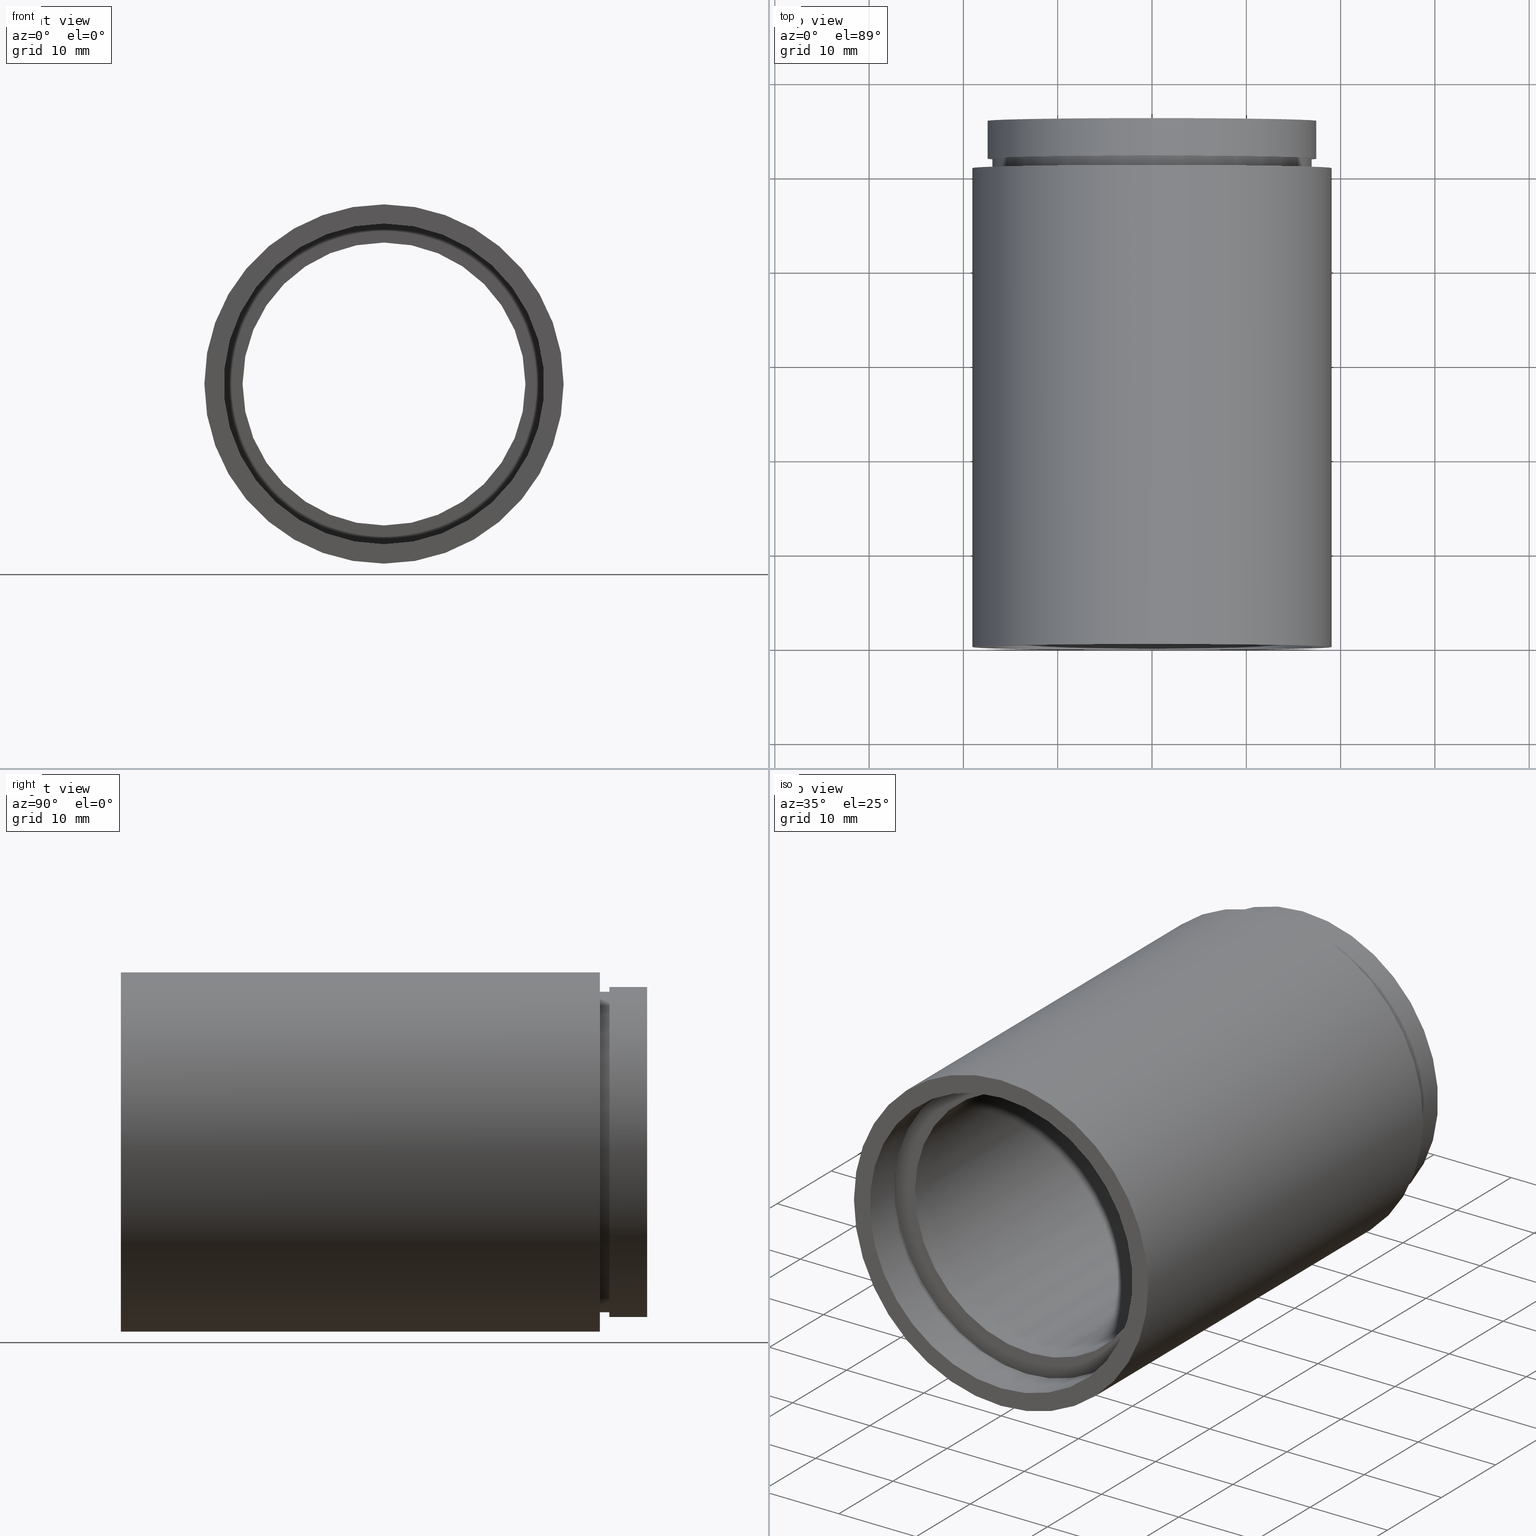
[diagram: canonical four-view strip — front | top / right | iso, engineering-drawing reading convention]
A machine part, canonical four-view strip (front | top / right | iso — engineering-drawing reading convention). The complete STEP part file that produces these views, byte-faithful:
ISO-10303-21;
HEADER;
FILE_DESCRIPTION (( 'STEP AP214' ),
    '1' );
FILE_NAME ('503034.STEP',
    '2019-09-05T08:46:19',
    ( '' ),
    ( '' ),
    'SwSTEP 2.0',
    'SolidWorks 2016',
    '' );
FILE_SCHEMA (( 'AUTOMOTIVE_DESIGN' ));
ENDSEC;

DATA;
#1 = FILL_AREA_STYLE_COLOUR ( '', #294 ) ;
#2 = CARTESIAN_POINT ( 'NONE',  ( 0.0000000000000000000, 51.79999999999998300, 17.50000000000002100 ) ) ;
#3 = EDGE_CURVE ( 'NONE', #215, #433, #228, .T. ) ;
#4 = SURFACE_STYLE_USAGE ( .BOTH. , #345 ) ;
#5 = EDGE_LOOP ( 'NONE', ( #218, #125, #75, #61 ) ) ;
#6 = EDGE_LOOP ( 'NONE', ( #570, #299 ) ) ;
#7 = ADVANCED_FACE ( 'NONE', ( #613 ), #170, .F. ) ;
#8 = COLOUR_RGB ( '',1.000000000000000000, 1.000000000000000000, 1.000000000000000000 ) ;
#9 =( GEOMETRIC_REPRESENTATION_CONTEXT ( 3 ) GLOBAL_UNCERTAINTY_ASSIGNED_CONTEXT ( ( #71 ) ) GLOBAL_UNIT_ASSIGNED_CONTEXT ( ( #407, #163, #448 ) ) REPRESENTATION_CONTEXT ( 'NONE', 'WORKASPACE' ) );
#10 = PLANE ( 'NONE',  #22 ) ;
#11 = DIRECTION ( 'NONE',  ( 1.000000000000000000, 0.0000000000000000000, 0.0000000000000000000 ) ) ;
#12 = UNCERTAINTY_MEASURE_WITH_UNIT (LENGTH_MEASURE( 1.000000000000000100E-005 ), #623, 'distance_accuracy_value', 'NONE');
#13 = SURFACE_SIDE_STYLE ('',( #459 ) ) ;
#14 = EDGE_CURVE ( 'NONE', #40, #473, #600, .T. ) ;
#15 = DIRECTION ( 'NONE',  ( 0.0000000000000000000, 0.0000000000000000000, 1.000000000000000000 ) ) ;
#16 = DIRECTION ( 'NONE',  ( 0.0000000000000000000, 0.0000000000000000000, 1.000000000000000000 ) ) ;
#17 = DIRECTION ( 'NONE',  ( 0.0000000000000000000, 0.0000000000000000000, 1.000000000000000000 ) ) ;
#18 = STYLED_ITEM ( 'NONE', ( #63 ), #615 ) ;
#19 = CARTESIAN_POINT ( 'NONE',  ( 0.0000000000000000000, 50.79999999999998300, 17.00000000000001400 ) ) ;
#20 = ORIENTED_EDGE ( 'NONE', *, *, #82, .F. ) ;
#21 = ORIENTED_EDGE ( 'NONE', *, *, #36, .T. ) ;
#22 = AXIS2_PLACEMENT_3D ( 'NONE', #296, #186, #49 ) ;
#23 = PRODUCT ( '503034', '503034', '', ( #203 ) ) ;
#24 = EDGE_CURVE ( 'NONE', #219, #433, #35, .T. ) ;
#25 = CARTESIAN_POINT ( 'NONE',  ( 0.0000000000000000000, 4.499999999999976000, 17.00000000000002500 ) ) ;
#26 = AXIS2_PLACEMENT_3D ( 'NONE', #624, #88, #244 ) ;
#27 = ORIENTED_EDGE ( 'NONE', *, *, #330, .F. ) ;
#28 = DIRECTION ( 'NONE',  ( 0.0000000000000000000, 0.0000000000000000000, 1.000000000000000000 ) ) ;
#29 = VERTEX_POINT ( 'NONE', #387 ) ;
#30 = DIRECTION ( 'NONE',  ( -0.0000000000000000000, 1.000000000000000000, -0.0000000000000000000 ) ) ;
#31 = CYLINDRICAL_SURFACE ( 'NONE', #461, 15.00000000000001600 ) ;
#32 = EDGE_CURVE ( 'NONE', #141, #462, #463, .T. ) ;
#33 = DIRECTION ( 'NONE',  ( 0.0000000000000000000, -1.000000000000000000, 0.0000000000000000000 ) ) ;
#34 = VERTEX_POINT ( 'NONE', #231 ) ;
#35 = LINE ( 'NONE', #336, #547 ) ;
#36 = EDGE_CURVE ( 'NONE', #473, #431, #343, .T. ) ;
#37 = AXIS2_PLACEMENT_3D ( 'NONE', #605, #74, #375 ) ;
#38 = CYLINDRICAL_SURFACE ( 'NONE', #260, 19.05000000000002200 ) ;
#39 = CIRCLE ( 'NONE', #413, 19.05000000000002200 ) ;
#40 = VERTEX_POINT ( 'NONE', #2 ) ;
#41 = VERTEX_POINT ( 'NONE', #339 ) ;
#42 = EDGE_CURVE ( 'NONE', #462, #335, #537, .T. ) ;
#43 = DIRECTION ( 'NONE',  ( -0.0000000000000000000, 1.000000000000000000, -0.0000000000000000000 ) ) ;
#44 = DIRECTION ( 'NONE',  ( -0.0000000000000000000, 1.000000000000000000, -0.0000000000000000000 ) ) ;
#45 = EDGE_LOOP ( 'NONE', ( #598, #133 ) ) ;
#46 = DIRECTION ( 'NONE',  ( -0.0000000000000000000, 1.000000000000000000, -0.0000000000000000000 ) ) ;
#47 = PLANE ( 'NONE',  #26 ) ;
#48 = STYLED_ITEM ( 'NONE', ( #322 ), #253 ) ;
#49 = DIRECTION ( 'NONE',  ( 0.0000000000000000000, -0.0000000000000000000, -1.000000000000000000 ) ) ;
#50 = FACE_OUTER_BOUND ( 'NONE', #179, .T. ) ;
#51 = EDGE_CURVE ( 'NONE', #40, #554, #65, .T. ) ;
#52 = DIRECTION ( 'NONE',  ( -0.0000000000000000000, 1.000000000000000000, -0.0000000000000000000 ) ) ;
#53 = MECHANICAL_DESIGN_GEOMETRIC_PRESENTATION_REPRESENTATION (  '', ( #189 ), #211 ) ;
#54 = APPLICATION_PROTOCOL_DEFINITION ( 'draft international standard', 'automotive_design', 1998, #308 ) ;
#55 = DIRECTION ( 'NONE',  ( -0.0000000000000000000, 1.000000000000000000, -0.0000000000000000000 ) ) ;
#56 = DIRECTION ( 'NONE',  ( 0.0000000000000000000, 0.0000000000000000000, 1.000000000000000000 ) ) ;
#57 = ADVANCED_FACE ( 'NONE', ( #81, #226 ), #10, .F. ) ;
#58 = DIRECTION ( 'NONE',  ( -0.0000000000000000000, 1.000000000000000000, -0.0000000000000000000 ) ) ;
#59 = ORIENTED_EDGE ( 'NONE', *, *, #502, .T. ) ;
#60 = ORIENTED_EDGE ( 'NONE', *, *, #379, .F. ) ;
#61 = ORIENTED_EDGE ( 'NONE', *, *, #591, .F. ) ;
#62 = DIRECTION ( 'NONE',  ( -0.0000000000000000000, 1.000000000000000000, -0.0000000000000000000 ) ) ;
#63 = PRESENTATION_STYLE_ASSIGNMENT (( #158 ) ) ;
#64 = FILL_AREA_STYLE ('',( #500 ) ) ;
#65 = LINE ( 'NONE', #142, #410 ) ;
#66 = VERTEX_POINT ( 'NONE', #426 ) ;
#67 = AXIS2_PLACEMENT_3D ( 'NONE', #258, #206, #599 ) ;
#68 = VERTEX_POINT ( 'NONE', #97 ) ;
#69 = SURFACE_STYLE_USAGE ( .BOTH. , #115 ) ;
#70 = CARTESIAN_POINT ( 'NONE',  ( 0.0000000000000000000, 161.3761669434274500, 0.0000000000000000000 ) ) ;
#71 = UNCERTAINTY_MEASURE_WITH_UNIT (LENGTH_MEASURE( 1.000000000000000100E-005 ), #407, 'distance_accuracy_value', 'NONE');
#72 = EDGE_CURVE ( 'NONE', #34, #191, #39, .T. ) ;
#73 = CARTESIAN_POINT ( 'NONE',  ( 1.836970198721032000E-015, 5.499999999999976900, -15.00000000000001600 ) ) ;
#74 = DIRECTION ( 'NONE',  ( -0.0000000000000000000, 1.000000000000000000, -0.0000000000000000000 ) ) ;
#75 = ORIENTED_EDGE ( 'NONE', *, *, #51, .T. ) ;
#76 = AXIS2_PLACEMENT_3D ( 'NONE', #573, #340, #287 ) ;
#77 = DIRECTION ( 'NONE',  ( -0.0000000000000000000, 1.000000000000000000, -0.0000000000000000000 ) ) ;
#78 = PRESENTATION_LAYER_ASSIGNMENT (  '', '', ( #48 ) ) ;
#79 = FACE_OUTER_BOUND ( 'NONE', #167, .T. ) ;
#80 = ORIENTED_EDGE ( 'NONE', *, *, #148, .T. ) ;
#81 = FACE_BOUND ( 'NONE', #496, .T. ) ;
#82 = EDGE_CURVE ( 'NONE', #433, #215, #152, .T. ) ;
#83 = AXIS2_PLACEMENT_3D ( 'NONE', #530, #392, #477 ) ;
#84 = FACE_OUTER_BOUND ( 'NONE', #86, .T. ) ;
#85 = LINE ( 'NONE', #549, #334 ) ;
#86 = EDGE_LOOP ( 'NONE', ( #127, #80 ) ) ;
#87 = EDGE_LOOP ( 'NONE', ( #562, #282 ) ) ;
#88 = DIRECTION ( 'NONE',  ( -0.0000000000000000000, 1.000000000000000000, 0.0000000000000000000 ) ) ;
#89 = AXIS2_PLACEMENT_3D ( 'NONE', #395, #436, #480 ) ;
#90 = CARTESIAN_POINT ( 'NONE',  ( 0.0000000000000000000, 5.499999999999976900, 0.0000000000000000000 ) ) ;
#91 = CARTESIAN_POINT ( 'NONE',  ( 0.0000000000000000000, 5.499999999999976900, 0.0000000000000000000 ) ) ;
#92 = EDGE_CURVE ( 'NONE', #155, #435, #280, .T. ) ;
#93 = DIRECTION ( 'NONE',  ( -0.0000000000000000000, 1.000000000000000000, -0.0000000000000000000 ) ) ;
#94 = CIRCLE ( 'NONE', #320, 19.05000000000002200 ) ;
#95 = AXIS2_PLACEMENT_3D ( 'NONE', #220, #30, #223 ) ;
#96 = CIRCLE ( 'NONE', #256, 17.60000000000002300 ) ;
#97 = CARTESIAN_POINT ( 'NONE',  ( 2.155378366499344400E-015, 4.499999999999976000, -17.60000000000002300 ) ) ;
#98 = ADVANCED_FACE ( 'NONE', ( #454 ), #224, .F. ) ;
#99 = UNCERTAINTY_MEASURE_WITH_UNIT (LENGTH_MEASURE( 1.000000000000000100E-005 ), #105, 'distance_accuracy_value', 'NONE');
#100 = DIRECTION ( 'NONE',  ( 0.0000000000000000000, 0.0000000000000000000, 1.000000000000000000 ) ) ;
#101 = DIRECTION ( 'NONE',  ( -0.0000000000000000000, 1.000000000000000000, -0.0000000000000000000 ) ) ;
#102 = CARTESIAN_POINT ( 'NONE',  ( 0.0000000000000000000, 161.3761669434274500, 0.0000000000000000000 ) ) ;
#103 = ADVANCED_FACE ( 'NONE', ( #238 ), #356, .F. ) ;
#104 = DIRECTION ( 'NONE',  ( 0.0000000000000000000, 0.0000000000000000000, 1.000000000000000000 ) ) ;
#105 =( LENGTH_UNIT ( ) NAMED_UNIT ( * ) SI_UNIT ( .MILLI., .METRE. ) );
#106 = DIRECTION ( 'NONE',  ( -0.0000000000000000000, 1.000000000000000000, -0.0000000000000000000 ) ) ;
#107 = SURFACE_STYLE_USAGE ( .BOTH. , #13 ) ;
#108 = CIRCLE ( 'NONE', #37, 17.00000000000001400 ) ;
#109 = EDGE_CURVE ( 'NONE', #68, #567, #389, .T. ) ;
#110 = FILL_AREA_STYLE_COLOUR ( '', #8 ) ;
#111 = DIRECTION ( 'NONE',  ( -0.0000000000000000000, 1.000000000000000000, -0.0000000000000000000 ) ) ;
#112 = FILL_AREA_STYLE_COLOUR ( '', #217 ) ;
#113 = DIRECTION ( 'NONE',  ( 0.0000000000000000000, 0.0000000000000000000, 1.000000000000000000 ) ) ;
#114 = ADVANCED_BREP_SHAPE_REPRESENTATION ( '503034', ( #615, #469 ), #512 ) ;
#115 = SURFACE_SIDE_STYLE ('',( #382 ) ) ;
#116 = FACE_BOUND ( 'NONE', #174, .T. ) ;
#117 = AXIS2_PLACEMENT_3D ( 'NONE', #587, #106, #15 ) ;
#118 = EDGE_LOOP ( 'NONE', ( #250, #526, #323, #290 ) ) ;
#119 = ORIENTED_EDGE ( 'NONE', *, *, #604, .T. ) ;
#120 = FILL_AREA_STYLE_COLOUR ( '', #442 ) ;
#121 = EDGE_CURVE ( 'NONE', #132, #219, #365, .T. ) ;
#122 = SURFACE_SIDE_STYLE ('',( #354 ) ) ;
#123 = UNCERTAINTY_MEASURE_WITH_UNIT (LENGTH_MEASURE( 1.000000000000000100E-005 ), #545, 'distance_accuracy_value', 'NONE');
#124 = DIRECTION ( 'NONE',  ( -0.0000000000000000000, 1.000000000000000000, -0.0000000000000000000 ) ) ;
#125 = ORIENTED_EDGE ( 'NONE', *, *, #162, .T. ) ;
#126 = AXIS2_PLACEMENT_3D ( 'NONE', #102, #192, #478 ) ;
#127 = ORIENTED_EDGE ( 'NONE', *, *, #72, .T. ) ;
#128 = DIRECTION ( 'NONE',  ( 0.0000000000000000000, 0.0000000000000000000, 1.000000000000000000 ) ) ;
#129 = AXIS2_PLACEMENT_3D ( 'NONE', #535, #490, #56 ) ;
#130 = FACE_OUTER_BOUND ( 'NONE', #546, .T. ) ;
#131 = EDGE_LOOP ( 'NONE', ( #588, #418, #444, #366 ) ) ;
#132 = VERTEX_POINT ( 'NONE', #350 ) ;
#133 = ORIENTED_EDGE ( 'NONE', *, *, #550, .T. ) ;
#134 = EDGE_CURVE ( 'NONE', #141, #41, #577, .T. ) ;
#135 = COLOUR_RGB ( '',1.000000000000000000, 1.000000000000000000, 1.000000000000000000 ) ;
#136 = ORIENTED_EDGE ( 'NONE', *, *, #502, .F. ) ;
#137 = CARTESIAN_POINT ( 'NONE',  ( 0.0000000000000000000, 161.3761669434274500, 0.0000000000000000000 ) ) ;
#138 = ORIENTED_EDGE ( 'NONE', *, *, #121, .T. ) ;
#139 = EDGE_CURVE ( 'NONE', #324, #510, #621, .T. ) ;
#140 = DIRECTION ( 'NONE',  ( -0.0000000000000000000, 1.000000000000000000, 0.0000000000000000000 ) ) ;
#141 = VERTEX_POINT ( 'NONE', #190 ) ;
#142 = CARTESIAN_POINT ( 'NONE',  ( 0.0000000000000000000, 161.3761669434274500, 17.50000000000002100 ) ) ;
#143 = DIRECTION ( 'NONE',  ( 0.0000000000000000000, 0.0000000000000000000, 1.000000000000000000 ) ) ;
#144 = CARTESIAN_POINT ( 'NONE',  ( 2.143131898507870600E-015, 161.3761669434274500, -17.50000000000002100 ) ) ;
#145 = PLANE ( 'NONE',  #76 ) ;
#146 = LINE ( 'NONE', #446, #329 ) ;
#147 = ADVANCED_FACE ( 'NONE', ( #505 ), #272, .F. ) ;
#148 = EDGE_CURVE ( 'NONE', #191, #34, #523, .T. ) ;
#149 = FACE_OUTER_BOUND ( 'NONE', #6, .T. ) ;
#150 = AXIS2_PLACEMENT_3D ( 'NONE', #328, #460, #271 ) ;
#151 = DIRECTION ( 'NONE',  ( -0.0000000000000000000, 1.000000000000000000, -0.0000000000000000000 ) ) ;
#152 = CIRCLE ( 'NONE', #89, 17.00000000000002500 ) ;
#153 = ORIENTED_EDGE ( 'NONE', *, *, #476, .F. ) ;
#154 = ORIENTED_EDGE ( 'NONE', *, *, #92, .T. ) ;
#155 = VERTEX_POINT ( 'NONE', #543 ) ;
#156 = FILL_AREA_STYLE_COLOUR ( '', #515 ) ;
#157 = CARTESIAN_POINT ( 'NONE',  ( 0.0000000000000000000, -2.775557561562891400E-014, 0.0000000000000000000 ) ) ;
#158 = SURFACE_STYLE_USAGE ( .BOTH. , #584 ) ;
#159 = EDGE_LOOP ( 'NONE', ( #540, #423, #445, #182 ) ) ;
#160 = ORIENTED_EDGE ( 'NONE', *, *, #139, .T. ) ;
#161 = DIRECTION ( 'NONE',  ( -0.0000000000000000000, 1.000000000000000000, -0.0000000000000000000 ) ) ;
#162 = EDGE_CURVE ( 'NONE', #473, #40, #342, .T. ) ;
#163 =( NAMED_UNIT ( * ) PLANE_ANGLE_UNIT ( ) SI_UNIT ( $, .RADIAN. ) );
#164 = PRESENTATION_STYLE_ASSIGNMENT (( #4 ) ) ;
#165 = UNCERTAINTY_MEASURE_WITH_UNIT (LENGTH_MEASURE( 1.000000000000000100E-005 ), #456, 'distance_accuracy_value', 'NONE');
#166 = FACE_BOUND ( 'NONE', #412, .T. ) ;
#167 = EDGE_LOOP ( 'NONE', ( #555, #409 ) ) ;
#168 = AXIS2_PLACEMENT_3D ( 'NONE', #196, #352, #104 ) ;
#169 = CARTESIAN_POINT ( 'NONE',  ( 0.0000000000000000000, 4.499999999999976000, 0.0000000000000000000 ) ) ;
#170 = CYLINDRICAL_SURFACE ( 'NONE', #508, 17.00000000000002100 ) ;
#171 = AXIS2_PLACEMENT_3D ( 'NONE', #275, #465, #286 ) ;
#172 = CARTESIAN_POINT ( 'NONE',  ( 2.143131898507870600E-015, 55.79999999999999000, -17.50000000000002100 ) ) ;
#173 = AXIS2_PLACEMENT_3D ( 'NONE', #91, #52, #575 ) ;
#174 = EDGE_LOOP ( 'NONE', ( #138, #536 ) ) ;
#175 = FACE_OUTER_BOUND ( 'NONE', #514, .T. ) ;
#176 = CIRCLE ( 'NONE', #385, 17.60000000000002300 ) ;
#177 = CIRCLE ( 'NONE', #67, 17.00000000000002100 ) ;
#178 = EDGE_CURVE ( 'NONE', #567, #68, #96, .T. ) ;
#179 = EDGE_LOOP ( 'NONE', ( #284, #230, #452, #355 ) ) ;
#180 = AXIS2_PLACEMENT_3D ( 'NONE', #414, #369, #212 ) ;
#181 = DIRECTION ( 'NONE',  ( -0.0000000000000000000, 1.000000000000000000, -0.0000000000000000000 ) ) ;
#182 = ORIENTED_EDGE ( 'NONE', *, *, #466, .T. ) ;
#183 = PRODUCT_DEFINITION_FORMATION_WITH_SPECIFIED_SOURCE ( '�κ�', '', #23, .NOT_KNOWN. ) ;
#184 = CARTESIAN_POINT ( 'NONE',  ( 0.0000000000000000000, 5.499999999999976900, 0.0000000000000000000 ) ) ;
#185 = SURFACE_STYLE_FILL_AREA ( #487 ) ;
#186 = DIRECTION ( 'NONE',  ( 0.0000000000000000000, -1.000000000000000000, 0.0000000000000000000 ) ) ;
#187 = EDGE_CURVE ( 'NONE', #132, #215, #404, .T. ) ;
#188 =( LENGTH_UNIT ( ) NAMED_UNIT ( * ) SI_UNIT ( .MILLI., .METRE. ) );
#189 = STYLED_ITEM ( 'NONE', ( #164 ), #596 ) ;
#190 = CARTESIAN_POINT ( 'NONE',  ( 0.0000000000000000000, 5.499999999999976900, 15.00000000000001600 ) ) ;
#191 = VERTEX_POINT ( 'NONE', #593 ) ;
#192 = DIRECTION ( 'NONE',  ( -0.0000000000000000000, 1.000000000000000000, -0.0000000000000000000 ) ) ;
#193 = STYLED_ITEM ( 'NONE', ( #338 ), #98 ) ;
#194 = FILL_AREA_STYLE ('',( #156 ) ) ;
#195 = CARTESIAN_POINT ( 'NONE',  ( 0.0000000000000000000, 51.79999999999998300, 0.0000000000000000000 ) ) ;
#196 = CARTESIAN_POINT ( 'NONE',  ( 0.0000000000000000000, 51.79999999999998300, 0.0000000000000000000 ) ) ;
#197 =( GEOMETRIC_REPRESENTATION_CONTEXT ( 3 ) GLOBAL_UNCERTAINTY_ASSIGNED_CONTEXT ( ( #12 ) ) GLOBAL_UNIT_ASSIGNED_CONTEXT ( ( #623, #229, #283 ) ) REPRESENTATION_CONTEXT ( 'NONE', 'WORKASPACE' ) );
#198 = SURFACE_STYLE_USAGE ( .BOTH. , #439 ) ;
#199 =( NAMED_UNIT ( * ) PLANE_ANGLE_UNIT ( ) SI_UNIT ( $, .RADIAN. ) );
#200 = VECTOR ( 'NONE', #312, 1000.000000000000000 ) ;
#201 = APPLICATION_PROTOCOL_DEFINITION ( 'draft international standard', 'automotive_design', 1998, #492 ) ;
#202 = SURFACE_STYLE_USAGE ( .BOTH. , #394 ) ;
#203 = PRODUCT_CONTEXT ( 'NONE', #492, 'mechanical' ) ;
#204 = AXIS2_PLACEMENT_3D ( 'NONE', #184, #93, #428 ) ;
#205 = DIRECTION ( 'NONE',  ( -0.0000000000000000000, 1.000000000000000000, -0.0000000000000000000 ) ) ;
#206 = DIRECTION ( 'NONE',  ( -0.0000000000000000000, 1.000000000000000000, -0.0000000000000000000 ) ) ;
#207 = UNCERTAINTY_MEASURE_WITH_UNIT (LENGTH_MEASURE( 1.000000000000000100E-005 ), #257, 'distance_accuracy_value', 'NONE');
#208 = VECTOR ( 'NONE', #524, 1000.000000000000000 ) ;
#209 = EDGE_LOOP ( 'NONE', ( #59, #589 ) ) ;
#210 = CARTESIAN_POINT ( 'NONE',  ( 0.0000000000000000000, 161.3761669434274500, 17.00000000000001400 ) ) ;
#211 =( GEOMETRIC_REPRESENTATION_CONTEXT ( 3 ) GLOBAL_UNCERTAINTY_ASSIGNED_CONTEXT ( ( #251 ) ) GLOBAL_UNIT_ASSIGNED_CONTEXT ( ( #188, #541, #441 ) ) REPRESENTATION_CONTEXT ( 'NONE', 'WORKASPACE' ) );
#212 = DIRECTION ( 'NONE',  ( 0.0000000000000000000, 0.0000000000000000000, 1.000000000000000000 ) ) ;
#213 = FACE_BOUND ( 'NONE', #344, .T. ) ;
#214 = CYLINDRICAL_SURFACE ( 'NONE', #291, 17.00000000000001400 ) ;
#215 = VERTEX_POINT ( 'NONE', #25 ) ;
#216 = DIRECTION ( 'NONE',  ( -0.0000000000000000000, 1.000000000000000000, -0.0000000000000000000 ) ) ;
#217 = COLOUR_RGB ( '',1.000000000000000000, 1.000000000000000000, 1.000000000000000000 ) ;
#218 = ORIENTED_EDGE ( 'NONE', *, *, #36, .F. ) ;
#219 = VERTEX_POINT ( 'NONE', #603 ) ;
#220 = CARTESIAN_POINT ( 'NONE',  ( 0.0000000000000000000, 55.79999999999999000, 0.0000000000000000000 ) ) ;
#221 = MECHANICAL_DESIGN_GEOMETRIC_PRESENTATION_REPRESENTATION (  '', ( #193 ), #532 ) ;
#222 = CIRCLE ( 'NONE', #173, 15.00000000000001600 ) ;
#223 = DIRECTION ( 'NONE',  ( 0.0000000000000000000, 0.0000000000000000000, 1.000000000000000000 ) ) ;
#224 = CYLINDRICAL_SURFACE ( 'NONE', #327, 17.00000000000002100 ) ;
#225 = ORIENTED_EDGE ( 'NONE', *, *, #416, .T. ) ;
#226 = FACE_OUTER_BOUND ( 'NONE', #87, .T. ) ;
#227 = AXIS2_PLACEMENT_3D ( 'NONE', #422, #140, #579 ) ;
#228 = CIRCLE ( 'NONE', #171, 17.00000000000002500 ) ;
#229 =( NAMED_UNIT ( * ) PLANE_ANGLE_UNIT ( ) SI_UNIT ( $, .RADIAN. ) );
#230 = ORIENTED_EDGE ( 'NONE', *, *, #379, .T. ) ;
#231 = CARTESIAN_POINT ( 'NONE',  ( 0.0000000000000000000, 50.79999999999998300, 19.05000000000002200 ) ) ;
#232 = CARTESIAN_POINT ( 'NONE',  ( 0.0000000000000000000, -2.775557561562891400E-014, 19.05000000000002200 ) ) ;
#233 = PRODUCT_DEFINITION_SHAPE ( 'NONE', 'NONE',  #607 ) ;
#234 = CARTESIAN_POINT ( 'NONE',  ( 2.155378366499344400E-015, 161.3761669434274500, -17.60000000000002300 ) ) ;
#235 = AXIS2_PLACEMENT_3D ( 'NONE', #391, #427, #143 ) ;
#236 = DIRECTION ( 'NONE',  ( 0.0000000000000000000, 0.0000000000000000000, 1.000000000000000000 ) ) ;
#237 = CYLINDRICAL_SURFACE ( 'NONE', #425, 17.60000000000002300 ) ;
#238 = FACE_OUTER_BOUND ( 'NONE', #131, .T. ) ;
#239 = ORIENTED_EDGE ( 'NONE', *, *, #134, .F. ) ;
#240 = ORIENTED_EDGE ( 'NONE', *, *, #148, .F. ) ;
#241 = CARTESIAN_POINT ( 'NONE',  ( 0.0000000000000000000, 55.79999999999999000, 17.50000000000002100 ) ) ;
#242 = STYLED_ITEM ( 'NONE', ( #451 ), #147 ) ;
#243 = ADVANCED_FACE ( 'NONE', ( #130 ), #214, .T. ) ;
#244 = DIRECTION ( 'NONE',  ( 0.0000000000000000000, 0.0000000000000000000, 1.000000000000000000 ) ) ;
#245 = PRESENTATION_LAYER_ASSIGNMENT (  '', '', ( #371 ) ) ;
#246 =( NAMED_UNIT ( * ) SI_UNIT ( $, .STERADIAN. ) SOLID_ANGLE_UNIT ( ) );
#247 = STYLED_ITEM ( 'NONE', ( #499 ), #114 ) ;
#248 = DIRECTION ( 'NONE',  ( 0.0000000000000000000, 0.0000000000000000000, 1.000000000000000000 ) ) ;
#249 = DIRECTION ( 'NONE',  ( 0.0000000000000000000, 0.0000000000000000000, 1.000000000000000000 ) ) ;
#250 = ORIENTED_EDGE ( 'NONE', *, *, #316, .F. ) ;
#251 = UNCERTAINTY_MEASURE_WITH_UNIT (LENGTH_MEASURE( 1.000000000000000100E-005 ), #188, 'distance_accuracy_value', 'NONE');
#252 = ORIENTED_EDGE ( 'NONE', *, *, #466, .F. ) ;
#253 = ADVANCED_FACE ( 'NONE', ( #458 ), #482, .T. ) ;
#254 = DIRECTION ( 'NONE',  ( -0.0000000000000000000, 1.000000000000000000, -0.0000000000000000000 ) ) ;
#255 = DIRECTION ( 'NONE',  ( 0.0000000000000000000, 0.0000000000000000000, 1.000000000000000000 ) ) ;
#256 = AXIS2_PLACEMENT_3D ( 'NONE', #169, #161, #263 ) ;
#257 =( LENGTH_UNIT ( ) NAMED_UNIT ( * ) SI_UNIT ( .MILLI., .METRE. ) );
#258 = CARTESIAN_POINT ( 'NONE',  ( 0.0000000000000000000, -2.775557561562891400E-014, 0.0000000000000000000 ) ) ;
#259 = CARTESIAN_POINT ( 'NONE',  ( 0.0000000000000000000, 5.499999999999976900, 17.60000000000002300 ) ) ;
#260 = AXIS2_PLACEMENT_3D ( 'NONE', #321, #77, #583 ) ;
#261 = CARTESIAN_POINT ( 'NONE',  ( 0.0000000000000000000, 161.3761669434274500, 0.0000000000000000000 ) ) ;
#262 = AXIS2_PLACEMENT_3D ( 'NONE', #157, #111, #434 ) ;
#263 = DIRECTION ( 'NONE',  ( 0.0000000000000000000, 0.0000000000000000000, 1.000000000000000000 ) ) ;
#264 = EDGE_LOOP ( 'NONE', ( #614, #337, #525, #325 ) ) ;
#265 = DIRECTION ( 'NONE',  ( 0.0000000000000000000, 0.0000000000000000000, 1.000000000000000000 ) ) ;
#266 = AXIS2_PLACEMENT_3D ( 'NONE', #521, #46, #100 ) ;
#267 = FACE_OUTER_BOUND ( 'NONE', #304, .T. ) ;
#268 = DIRECTION ( 'NONE',  ( 0.0000000000000000000, 0.0000000000000000000, 1.000000000000000000 ) ) ;
#269 = LINE ( 'NONE', #210, #200 ) ;
#270 = MECHANICAL_DESIGN_GEOMETRIC_PRESENTATION_REPRESENTATION (  '', ( #18 ), #565 ) ;
#271 = DIRECTION ( 'NONE',  ( 0.0000000000000000000, 0.0000000000000000000, 1.000000000000000000 ) ) ;
#272 = CYLINDRICAL_SURFACE ( 'NONE', #129, 15.00000000000001600 ) ;
#273 = CARTESIAN_POINT ( 'NONE',  ( 2.143131898507870600E-015, 51.79999999999998300, -17.50000000000002100 ) ) ;
#274 = AXIS2_PLACEMENT_3D ( 'NONE', #195, #307, #28 ) ;
#275 = CARTESIAN_POINT ( 'NONE',  ( 0.0000000000000000000, 4.499999999999976000, 0.0000000000000000000 ) ) ;
#276 = UNCERTAINTY_MEASURE_WITH_UNIT (LENGTH_MEASURE( 1.000000000000000100E-005 ), #484, 'distance_accuracy_value', 'NONE');
#277 = MECHANICAL_DESIGN_GEOMETRIC_PRESENTATION_REPRESENTATION (  '', ( #371 ), #197 ) ;
#278 = FACE_OUTER_BOUND ( 'NONE', #5, .T. ) ;
#279 = ORIENTED_EDGE ( 'NONE', *, *, #550, .F. ) ;
#280 = CIRCLE ( 'NONE', #168, 17.00000000000001400 ) ;
#281 = PRESENTATION_LAYER_ASSIGNMENT (  '', '', ( #247 ) ) ;
#282 = ORIENTED_EDGE ( 'NONE', *, *, #109, .T. ) ;
#283 =( NAMED_UNIT ( * ) SI_UNIT ( $, .STERADIAN. ) SOLID_ANGLE_UNIT ( ) );
#284 = ORIENTED_EDGE ( 'NONE', *, *, #450, .T. ) ;
#285 = FILL_AREA_STYLE ('',( #420 ) ) ;
#286 = DIRECTION ( 'NONE',  ( 0.0000000000000000000, 0.0000000000000000000, 1.000000000000000000 ) ) ;
#287 = DIRECTION ( 'NONE',  ( 0.0000000000000000000, -0.0000000000000000000, -1.000000000000000000 ) ) ;
#288 = CARTESIAN_POINT ( 'NONE',  ( 0.0000000000000000000, 161.3761669434274500, 0.0000000000000000000 ) ) ;
#289 = COLOUR_RGB ( '',1.000000000000000000, 1.000000000000000000, 1.000000000000000000 ) ;
#290 = ORIENTED_EDGE ( 'NONE', *, *, #187, .F. ) ;
#291 = AXIS2_PLACEMENT_3D ( 'NONE', #70, #364, #405 ) ;
#292 = ORIENTED_EDGE ( 'NONE', *, *, #109, .F. ) ;
#293 = DIRECTION ( 'NONE',  ( -0.0000000000000000000, 1.000000000000000000, -0.0000000000000000000 ) ) ;
#294 = COLOUR_RGB ( '',1.000000000000000000, 1.000000000000000000, 1.000000000000000000 ) ;
#295 = ADVANCED_FACE ( 'NONE', ( #430 ), #619, .T. ) ;
#296 = CARTESIAN_POINT ( 'NONE',  ( 17.00000000000002500, 4.499999999999983100, 0.0000000000000000000 ) ) ;
#297 = DIRECTION ( 'NONE',  ( -0.0000000000000000000, 1.000000000000000000, -0.0000000000000000000 ) ) ;
#298 = VERTEX_POINT ( 'NONE', #259 ) ;
#299 = ORIENTED_EDGE ( 'NONE', *, *, #437, .F. ) ;
#300 = FILL_AREA_STYLE_COLOUR ( '', #135 ) ;
#301 = ORIENTED_EDGE ( 'NONE', *, *, #616, .F. ) ;
#302 =( NAMED_UNIT ( * ) SI_UNIT ( $, .STERADIAN. ) SOLID_ANGLE_UNIT ( ) );
#303 = PRESENTATION_LAYER_ASSIGNMENT (  '', '', ( #242 ) ) ;
#304 = EDGE_LOOP ( 'NONE', ( #279, #489, #400, #239 ) ) ;
#305 = DIRECTION ( 'NONE',  ( -0.0000000000000000000, 1.000000000000000000, -0.0000000000000000000 ) ) ;
#306 = EDGE_CURVE ( 'NONE', #553, #34, #85, .T. ) ;
#307 = DIRECTION ( 'NONE',  ( -0.0000000000000000000, 1.000000000000000000, -0.0000000000000000000 ) ) ;
#308 = APPLICATION_CONTEXT ( 'automotive_design' ) ;
#309 = PRESENTATION_STYLE_ASSIGNMENT (( #447 ) ) ;
#310 = EDGE_LOOP ( 'NONE', ( #384, #21, #136, #503 ) ) ;
#311 = EDGE_LOOP ( 'NONE', ( #292, #357, #590, #153 ) ) ;
#312 = DIRECTION ( 'NONE',  ( -0.0000000000000000000, 1.000000000000000000, -0.0000000000000000000 ) ) ;
#313 = VECTOR ( 'NONE', #531, 1000.000000000000000 ) ;
#314 = CLOSED_SHELL ( 'NONE', ( #7, #353, #596, #253, #295, #485, #360, #581, #533, #243, #542, #347, #475, #147, #548, #103, #57, #98 ) ) ;
#315 = DIRECTION ( 'NONE',  ( 0.0000000000000000000, 0.0000000000000000000, 1.000000000000000000 ) ) ;
#316 = EDGE_CURVE ( 'NONE', #219, #132, #177, .T. ) ;
#317 = DIRECTION ( 'NONE',  ( -0.0000000000000000000, 1.000000000000000000, -0.0000000000000000000 ) ) ;
#318 = MECHANICAL_DESIGN_GEOMETRIC_PRESENTATION_REPRESENTATION (  '', ( #247 ), #351 ) ;
#319 = CARTESIAN_POINT ( 'NONE',  ( 2.081899558550503400E-015, 4.499999999999976000, -17.00000000000002500 ) ) ;
#320 = AXIS2_PLACEMENT_3D ( 'NONE', #608, #564, #265 ) ;
#321 = CARTESIAN_POINT ( 'NONE',  ( 0.0000000000000000000, 161.3761669434274500, 0.0000000000000000000 ) ) ;
#322 = PRESENTATION_STYLE_ASSIGNMENT (( #69 ) ) ;
#323 = ORIENTED_EDGE ( 'NONE', *, *, #82, .T. ) ;
#324 = VERTEX_POINT ( 'NONE', #19 ) ;
#325 = ORIENTED_EDGE ( 'NONE', *, *, #3, .T. ) ;
#326 = CARTESIAN_POINT ( 'NONE',  ( 0.0000000000000000000, 161.3761669434274500, 0.0000000000000000000 ) ) ;
#327 = AXIS2_PLACEMENT_3D ( 'NONE', #399, #305, #16 ) ;
#328 = CARTESIAN_POINT ( 'NONE',  ( 17.00000000000002100, -1.493598162583808000E-014, 0.0000000000000000000 ) ) ;
#329 = VECTOR ( 'NONE', #55, 1000.000000000000000 ) ;
#330 = EDGE_CURVE ( 'NONE', #324, #155, #269, .T. ) ;
#331 = SURFACE_STYLE_USAGE ( .BOTH. , #513 ) ;
#332 = FACE_OUTER_BOUND ( 'NONE', #311, .T. ) ;
#333 = AXIS2_PLACEMENT_3D ( 'NONE', #90, #293, #424 ) ;
#334 = VECTOR ( 'NONE', #594, 1000.000000000000000 ) ;
#335 = VERTEX_POINT ( 'NONE', #498 ) ;
#336 = CARTESIAN_POINT ( 'NONE',  ( 2.081899558550503000E-015, 161.3761669434274500, -17.00000000000002100 ) ) ;
#337 = ORIENTED_EDGE ( 'NONE', *, *, #121, .F. ) ;
#338 = PRESENTATION_STYLE_ASSIGNMENT (( #107 ) ) ;
#339 = CARTESIAN_POINT ( 'NONE',  ( 0.0000000000000000000, 55.79999999999999000, 15.00000000000001800 ) ) ;
#340 = DIRECTION ( 'NONE',  ( 0.0000000000000000000, -1.000000000000000000, 0.0000000000000000000 ) ) ;
#341 = CIRCLE ( 'NONE', #95, 15.00000000000001800 ) ;
#342 = CIRCLE ( 'NONE', #274, 17.50000000000002100 ) ;
#343 = LINE ( 'NONE', #144, #208 ) ;
#344 = EDGE_LOOP ( 'NONE', ( #252, #370 ) ) ;
#345 = SURFACE_SIDE_STYLE ('',( #618 ) ) ;
#346 = CARTESIAN_POINT ( 'NONE',  ( 0.0000000000000000000, 50.79999999999998300, 0.0000000000000000000 ) ) ;
#347 = ADVANCED_FACE ( 'NONE', ( #278 ), #501, .T. ) ;
#348 = CARTESIAN_POINT ( 'NONE',  ( 0.0000000000000000000, 50.79999999999998300, 0.0000000000000000000 ) ) ;
#349 = EDGE_CURVE ( 'NONE', #66, #553, #94, .T. ) ;
#350 = CARTESIAN_POINT ( 'NONE',  ( 0.0000000000000000000, -2.775557561562891400E-014, 17.00000000000002100 ) ) ;
#351 =( GEOMETRIC_REPRESENTATION_CONTEXT ( 3 ) GLOBAL_UNCERTAINTY_ASSIGNED_CONTEXT ( ( #99 ) ) GLOBAL_UNIT_ASSIGNED_CONTEXT ( ( #105, #586, #438 ) ) REPRESENTATION_CONTEXT ( 'NONE', 'WORKASPACE' ) );
#352 = DIRECTION ( 'NONE',  ( -0.0000000000000000000, 1.000000000000000000, -0.0000000000000000000 ) ) ;
#353 = ADVANCED_FACE ( 'NONE', ( #332 ), #237, .F. ) ;
#354 = SURFACE_STYLE_FILL_AREA ( #408 ) ;
#355 = ORIENTED_EDGE ( 'NONE', *, *, #306, .F. ) ;
#356 = CYLINDRICAL_SURFACE ( 'NONE', #126, 17.60000000000002300 ) ;
#357 = ORIENTED_EDGE ( 'NONE', *, *, #561, .T. ) ;
#358 = DIRECTION ( 'NONE',  ( 0.0000000000000000000, 0.0000000000000000000, 1.000000000000000000 ) ) ;
#359 = ORIENTED_EDGE ( 'NONE', *, *, #3, .F. ) ;
#360 = ADVANCED_FACE ( 'NONE', ( #429, #116 ), #612, .F. ) ;
#361 =( NAMED_UNIT ( * ) SI_UNIT ( $, .STERADIAN. ) SOLID_ANGLE_UNIT ( ) );
#362 = DIRECTION ( 'NONE',  ( -0.0000000000000000000, 1.000000000000000000, -0.0000000000000000000 ) ) ;
#363 = CARTESIAN_POINT ( 'NONE',  ( 0.0000000000000000000, 161.3761669434274500, 17.00000000000002100 ) ) ;
#364 = DIRECTION ( 'NONE',  ( -0.0000000000000000000, 1.000000000000000000, -0.0000000000000000000 ) ) ;
#365 = CIRCLE ( 'NONE', #262, 17.00000000000002100 ) ;
#366 = ORIENTED_EDGE ( 'NONE', *, *, #578, .T. ) ;
#367 = COLOUR_RGB ( '',1.000000000000000000, 1.000000000000000000, 1.000000000000000000 ) ;
#368 =( NAMED_UNIT ( * ) PLANE_ANGLE_UNIT ( ) SI_UNIT ( $, .RADIAN. ) );
#369 = DIRECTION ( 'NONE',  ( -0.0000000000000000000, 1.000000000000000000, -0.0000000000000000000 ) ) ;
#370 = ORIENTED_EDGE ( 'NONE', *, *, #519, .F. ) ;
#371 = STYLED_ITEM ( 'NONE', ( #464 ), #7 ) ;
#372 = DIRECTION ( 'NONE',  ( 0.0000000000000000000, -0.0000000000000000000, -1.000000000000000000 ) ) ;
#373 = PRODUCT_DEFINITION_CONTEXT ( 'detailed design', #308, 'design' ) ;
#374 = AXIS2_PLACEMENT_3D ( 'NONE', #566, #33, #372 ) ;
#375 = DIRECTION ( 'NONE',  ( 0.0000000000000000000, 0.0000000000000000000, 1.000000000000000000 ) ) ;
#376 = ORIENTED_EDGE ( 'NONE', *, *, #349, .F. ) ;
#377 = CARTESIAN_POINT ( 'NONE',  ( 0.0000000000000000000, 5.499999999999976900, 0.0000000000000000000 ) ) ;
#378 = CYLINDRICAL_SURFACE ( 'NONE', #417, 19.05000000000002200 ) ;
#379 = EDGE_CURVE ( 'NONE', #66, #191, #468, .T. ) ;
#380 = CIRCLE ( 'NONE', #455, 17.50000000000002100 ) ;
#381 = MECHANICAL_DESIGN_GEOMETRIC_PRESENTATION_REPRESENTATION (  '', ( #517 ), #617 ) ;
#382 = SURFACE_STYLE_FILL_AREA ( #64 ) ;
#383 = VECTOR ( 'NONE', #481, 1000.000000000000000 ) ;
#384 = ORIENTED_EDGE ( 'NONE', *, *, #14, .T. ) ;
#385 = AXIS2_PLACEMENT_3D ( 'NONE', #377, #216, #128 ) ;
#386 = CARTESIAN_POINT ( 'NONE',  ( 0.0000000000000000000, 55.79999999999999000, 0.0000000000000000000 ) ) ;
#387 = CARTESIAN_POINT ( 'NONE',  ( 2.155378366499344400E-015, 5.499999999999976900, -17.60000000000002300 ) ) ;
#388 = MECHANICAL_DESIGN_GEOMETRIC_PRESENTATION_REPRESENTATION (  '', ( #242 ), #568 ) ;
#389 = CIRCLE ( 'NONE', #610, 17.60000000000002300 ) ;
#390 = ORIENTED_EDGE ( 'NONE', *, *, #306, .T. ) ;
#391 = CARTESIAN_POINT ( 'NONE',  ( 0.0000000000000000000, 55.79999999999999000, 0.0000000000000000000 ) ) ;
#392 = DIRECTION ( 'NONE',  ( -0.0000000000000000000, 1.000000000000000000, -0.0000000000000000000 ) ) ;
#393 = DIRECTION ( 'NONE',  ( 0.0000000000000000000, 0.0000000000000000000, 1.000000000000000000 ) ) ;
#394 = SURFACE_SIDE_STYLE ('',( #486 ) ) ;
#395 = CARTESIAN_POINT ( 'NONE',  ( 0.0000000000000000000, 4.499999999999976000, 0.0000000000000000000 ) ) ;
#396 = LINE ( 'NONE', #234, #491 ) ;
#397 = CARTESIAN_POINT ( 'NONE',  ( 0.0000000000000000000, 51.79999999999998300, 0.0000000000000000000 ) ) ;
#398 = AXIS2_PLACEMENT_3D ( 'NONE', #346, #362, #358 ) ;
#399 = CARTESIAN_POINT ( 'NONE',  ( 0.0000000000000000000, 161.3761669434274500, 0.0000000000000000000 ) ) ;
#400 = ORIENTED_EDGE ( 'NONE', *, *, #519, .T. ) ;
#401 = CARTESIAN_POINT ( 'NONE',  ( 0.0000000000000000000, 4.499999999999976000, 0.0000000000000000000 ) ) ;
#402 = FILL_AREA_STYLE ('',( #110 ) ) ;
#403 =( NAMED_UNIT ( * ) PLANE_ANGLE_UNIT ( ) SI_UNIT ( $, .RADIAN. ) );
#404 = LINE ( 'NONE', #363, #494 ) ;
#405 = DIRECTION ( 'NONE',  ( 0.0000000000000000000, 0.0000000000000000000, 1.000000000000000000 ) ) ;
#406 = CARTESIAN_POINT ( 'NONE',  ( 0.0000000000000000000, 161.3761669434274500, 0.0000000000000000000 ) ) ;
#407 =( LENGTH_UNIT ( ) NAMED_UNIT ( * ) SI_UNIT ( .MILLI., .METRE. ) );
#408 = FILL_AREA_STYLE ('',( #120 ) ) ;
#409 = ORIENTED_EDGE ( 'NONE', *, *, #162, .F. ) ;
#410 = VECTOR ( 'NONE', #529, 1000.000000000000000 ) ;
#411 = CARTESIAN_POINT ( 'NONE',  ( 2.332952152375710400E-015, 161.3761669434274500, -19.05000000000002200 ) ) ;
#412 = EDGE_LOOP ( 'NONE', ( #538, #606 ) ) ;
#413 = AXIS2_PLACEMENT_3D ( 'NONE', #348, #151, #248 ) ;
#414 = CARTESIAN_POINT ( 'NONE',  ( 0.0000000000000000000, -2.775557561562891400E-014, 0.0000000000000000000 ) ) ;
#415 = CIRCLE ( 'NONE', #204, 17.60000000000002300 ) ;
#416 = EDGE_CURVE ( 'NONE', #510, #324, #108, .T. ) ;
#417 = AXIS2_PLACEMENT_3D ( 'NONE', #288, #297, #236 ) ;
#418 = ORIENTED_EDGE ( 'NONE', *, *, #178, .F. ) ;
#419 = PRESENTATION_LAYER_ASSIGNMENT (  '', '', ( #193 ) ) ;
#420 = FILL_AREA_STYLE_COLOUR ( '', #367 ) ;
#421 = UNCERTAINTY_MEASURE_WITH_UNIT (LENGTH_MEASURE( 1.000000000000000100E-005 ), #582, 'distance_accuracy_value', 'NONE');
#422 = CARTESIAN_POINT ( 'NONE',  ( 17.60000000000002300, 5.499999999999983100, 0.0000000000000000000 ) ) ;
#423 = ORIENTED_EDGE ( 'NONE', *, *, #32, .F. ) ;
#424 = DIRECTION ( 'NONE',  ( 0.0000000000000000000, 0.0000000000000000000, 1.000000000000000000 ) ) ;
#425 = AXIS2_PLACEMENT_3D ( 'NONE', #326, #124, #268 ) ;
#426 = CARTESIAN_POINT ( 'NONE',  ( 2.332952152375710400E-015, -2.775557561562891400E-014, -19.05000000000002200 ) ) ;
#427 = DIRECTION ( 'NONE',  ( -0.0000000000000000000, 1.000000000000000000, -0.0000000000000000000 ) ) ;
#428 = DIRECTION ( 'NONE',  ( 0.0000000000000000000, 0.0000000000000000000, 1.000000000000000000 ) ) ;
#429 = FACE_OUTER_BOUND ( 'NONE', #518, .T. ) ;
#430 = FACE_OUTER_BOUND ( 'NONE', #483, .T. ) ;
#431 = VERTEX_POINT ( 'NONE', #172 ) ;
#432 = DIRECTION ( 'NONE',  ( -0.0000000000000000000, 1.000000000000000000, -0.0000000000000000000 ) ) ;
#433 = VERTEX_POINT ( 'NONE', #319 ) ;
#434 = DIRECTION ( 'NONE',  ( 0.0000000000000000000, 0.0000000000000000000, 1.000000000000000000 ) ) ;
#435 = VERTEX_POINT ( 'NONE', #507 ) ;
#436 = DIRECTION ( 'NONE',  ( -0.0000000000000000000, 1.000000000000000000, -0.0000000000000000000 ) ) ;
#437 = EDGE_CURVE ( 'NONE', #29, #298, #176, .T. ) ;
#438 =( NAMED_UNIT ( * ) SI_UNIT ( $, .STERADIAN. ) SOLID_ANGLE_UNIT ( ) );
#439 = SURFACE_SIDE_STYLE ('',( #574 ) ) ;
#440 = FACE_BOUND ( 'NONE', #45, .T. ) ;
#441 =( NAMED_UNIT ( * ) SI_UNIT ( $, .STERADIAN. ) SOLID_ANGLE_UNIT ( ) );
#442 = COLOUR_RGB ( '',1.000000000000000000, 1.000000000000000000, 1.000000000000000000 ) ;
#443 = CARTESIAN_POINT ( 'NONE',  ( 0.0000000000000000000, 161.3761669434274500, 15.00000000000001600 ) ) ;
#444 = ORIENTED_EDGE ( 'NONE', *, *, #476, .T. ) ;
#445 = ORIENTED_EDGE ( 'NONE', *, *, #134, .T. ) ;
#446 = CARTESIAN_POINT ( 'NONE',  ( 2.081899558550502300E-015, 161.3761669434274500, -17.00000000000001400 ) ) ;
#447 = SURFACE_STYLE_USAGE ( .BOTH. , #122 ) ;
#448 =( NAMED_UNIT ( * ) SI_UNIT ( $, .STERADIAN. ) SOLID_ANGLE_UNIT ( ) );
#449 = DIRECTION ( 'NONE',  ( 0.0000000000000000000, 0.0000000000000000000, 1.000000000000000000 ) ) ;
#450 = EDGE_CURVE ( 'NONE', #553, #66, #611, .T. ) ;
#451 = PRESENTATION_STYLE_ASSIGNMENT (( #202 ) ) ;
#452 = ORIENTED_EDGE ( 'NONE', *, *, #72, .F. ) ;
#453 = DIRECTION ( 'NONE',  ( -0.0000000000000000000, 1.000000000000000000, -0.0000000000000000000 ) ) ;
#454 = FACE_OUTER_BOUND ( 'NONE', #264, .T. ) ;
#455 = AXIS2_PLACEMENT_3D ( 'NONE', #386, #44, #393 ) ;
#456 =( LENGTH_UNIT ( ) NAMED_UNIT ( * ) SI_UNIT ( .MILLI., .METRE. ) );
#457 = FACE_BOUND ( 'NONE', #509, .T. ) ;
#458 = FACE_OUTER_BOUND ( 'NONE', #310, .T. ) ;
#459 = SURFACE_STYLE_FILL_AREA ( #194 ) ;
#460 = DIRECTION ( 'NONE',  ( -0.0000000000000000000, 1.000000000000000000, 0.0000000000000000000 ) ) ;
#461 = AXIS2_PLACEMENT_3D ( 'NONE', #471, #432, #249 ) ;
#462 = VERTEX_POINT ( 'NONE', #73 ) ;
#463 = CIRCLE ( 'NONE', #333, 15.00000000000001600 ) ;
#464 = PRESENTATION_STYLE_ASSIGNMENT (( #331 ) ) ;
#465 = DIRECTION ( 'NONE',  ( -0.0000000000000000000, 1.000000000000000000, -0.0000000000000000000 ) ) ;
#466 = EDGE_CURVE ( 'NONE', #41, #335, #341, .T. ) ;
#467 = DIRECTION ( 'NONE',  ( 0.0000000000000000000, 0.0000000000000000000, 1.000000000000000000 ) ) ;
#468 = LINE ( 'NONE', #411, #585 ) ;
#469 = AXIS2_PLACEMENT_3D ( 'NONE', #544, #255, #11 ) ;
#470 = DIRECTION ( 'NONE',  ( -0.0000000000000000000, 1.000000000000000000, -0.0000000000000000000 ) ) ;
#471 = CARTESIAN_POINT ( 'NONE',  ( 0.0000000000000000000, 161.3761669434274500, 0.0000000000000000000 ) ) ;
#472 = ORIENTED_EDGE ( 'NONE', *, *, #330, .T. ) ;
#473 = VERTEX_POINT ( 'NONE', #273 ) ;
#474 = CARTESIAN_POINT ( 'NONE',  ( 1.836970198721032000E-015, 161.3761669434274500, -15.00000000000001600 ) ) ;
#475 = ADVANCED_FACE ( 'NONE', ( #213, #597 ), #504, .F. ) ;
#476 = EDGE_CURVE ( 'NONE', #567, #298, #576, .T. ) ;
#477 = DIRECTION ( 'NONE',  ( 0.0000000000000000000, 0.0000000000000000000, 1.000000000000000000 ) ) ;
#478 = DIRECTION ( 'NONE',  ( 0.0000000000000000000, 0.0000000000000000000, 1.000000000000000000 ) ) ;
#479 = PRESENTATION_LAYER_ASSIGNMENT (  '', '', ( #189 ) ) ;
#480 = DIRECTION ( 'NONE',  ( 0.0000000000000000000, 0.0000000000000000000, 1.000000000000000000 ) ) ;
#481 = DIRECTION ( 'NONE',  ( -0.0000000000000000000, 1.000000000000000000, -0.0000000000000000000 ) ) ;
#482 = CYLINDRICAL_SURFACE ( 'NONE', #557, 17.50000000000002100 ) ;
#483 = EDGE_LOOP ( 'NONE', ( #160, #119, #539, #27 ) ) ;
#484 =( LENGTH_UNIT ( ) NAMED_UNIT ( * ) SI_UNIT ( .MILLI., .METRE. ) );
#485 = ADVANCED_FACE ( 'NONE', ( #50 ), #38, .T. ) ;
#486 = SURFACE_STYLE_FILL_AREA ( #488 ) ;
#487 = FILL_AREA_STYLE ('',( #300 ) ) ;
#488 = FILL_AREA_STYLE ('',( #112 ) ) ;
#489 = ORIENTED_EDGE ( 'NONE', *, *, #42, .T. ) ;
#490 = DIRECTION ( 'NONE',  ( -0.0000000000000000000, 1.000000000000000000, -0.0000000000000000000 ) ) ;
#491 = VECTOR ( 'NONE', #101, 1000.000000000000000 ) ;
#492 = APPLICATION_CONTEXT ( 'automotive_design' ) ;
#493 =( NAMED_UNIT ( * ) SI_UNIT ( $, .STERADIAN. ) SOLID_ANGLE_UNIT ( ) );
#494 = VECTOR ( 'NONE', #317, 1000.000000000000000 ) ;
#495 = VECTOR ( 'NONE', #470, 1000.000000000000000 ) ;
#496 = EDGE_LOOP ( 'NONE', ( #359, #20 ) ) ;
#497 = DIRECTION ( 'NONE',  ( 0.0000000000000000000, 0.0000000000000000000, 1.000000000000000000 ) ) ;
#498 = CARTESIAN_POINT ( 'NONE',  ( 1.836970198721032300E-015, 55.79999999999999000, -15.00000000000002000 ) ) ;
#499 = PRESENTATION_STYLE_ASSIGNMENT (( #198 ) ) ;
#500 = FILL_AREA_STYLE_COLOUR ( '', #289 ) ;
#501 = CYLINDRICAL_SURFACE ( 'NONE', #506, 17.50000000000002100 ) ;
#502 = EDGE_CURVE ( 'NONE', #554, #431, #380, .T. ) ;
#503 = ORIENTED_EDGE ( 'NONE', *, *, #51, .F. ) ;
#504 = PLANE ( 'NONE',  #374 ) ;
#505 = FACE_OUTER_BOUND ( 'NONE', #159, .T. ) ;
#506 = AXIS2_PLACEMENT_3D ( 'NONE', #261, #62, #315 ) ;
#507 = CARTESIAN_POINT ( 'NONE',  ( 2.081899558550502300E-015, 51.79999999999998300, -17.00000000000001400 ) ) ;
#508 = AXIS2_PLACEMENT_3D ( 'NONE', #137, #181, #467 ) ;
#509 = EDGE_LOOP ( 'NONE', ( #154, #516 ) ) ;
#510 = VERTEX_POINT ( 'NONE', #569 ) ;
#511 = CIRCLE ( 'NONE', #595, 17.00000000000001400 ) ;
#512 =( GEOMETRIC_REPRESENTATION_CONTEXT ( 3 ) GLOBAL_UNCERTAINTY_ASSIGNED_CONTEXT ( ( #421 ) ) GLOBAL_UNIT_ASSIGNED_CONTEXT ( ( #582, #592, #361 ) ) REPRESENTATION_CONTEXT ( 'NONE', 'WORKASPACE' ) );
#513 = SURFACE_SIDE_STYLE ('',( #601 ) ) ;
#514 = EDGE_LOOP ( 'NONE', ( #60, #563, #390, #240 ) ) ;
#515 = COLOUR_RGB ( '',1.000000000000000000, 1.000000000000000000, 1.000000000000000000 ) ;
#516 = ORIENTED_EDGE ( 'NONE', *, *, #616, .T. ) ;
#517 = STYLED_ITEM ( 'NONE', ( #309 ), #347 ) ;
#518 = EDGE_LOOP ( 'NONE', ( #622, #376 ) ) ;
#519 = EDGE_CURVE ( 'NONE', #335, #41, #551, .T. ) ;
#520 = PRODUCT_RELATED_PRODUCT_CATEGORY ( 'part', '', ( #23 ) ) ;
#521 = CARTESIAN_POINT ( 'NONE',  ( 0.0000000000000000000, 51.79999999999998300, 0.0000000000000000000 ) ) ;
#522 = CARTESIAN_POINT ( 'NONE',  ( 0.0000000000000000000, 4.499999999999976000, 17.60000000000002300 ) ) ;
#523 = CIRCLE ( 'NONE', #117, 19.05000000000002200 ) ;
#524 = DIRECTION ( 'NONE',  ( -0.0000000000000000000, 1.000000000000000000, -0.0000000000000000000 ) ) ;
#525 = ORIENTED_EDGE ( 'NONE', *, *, #187, .T. ) ;
#526 = ORIENTED_EDGE ( 'NONE', *, *, #24, .T. ) ;
#527 = FILL_AREA_STYLE ('',( #1 ) ) ;
#528 = PRESENTATION_LAYER_ASSIGNMENT (  '', '', ( #18 ) ) ;
#529 = DIRECTION ( 'NONE',  ( -0.0000000000000000000, 1.000000000000000000, -0.0000000000000000000 ) ) ;
#530 = CARTESIAN_POINT ( 'NONE',  ( 0.0000000000000000000, 55.79999999999999000, 0.0000000000000000000 ) ) ;
#531 = DIRECTION ( 'NONE',  ( -0.0000000000000000000, 1.000000000000000000, -0.0000000000000000000 ) ) ;
#532 =( GEOMETRIC_REPRESENTATION_CONTEXT ( 3 ) GLOBAL_UNCERTAINTY_ASSIGNED_CONTEXT ( ( #276 ) ) GLOBAL_UNIT_ASSIGNED_CONTEXT ( ( #484, #403, #302 ) ) REPRESENTATION_CONTEXT ( 'NONE', 'WORKASPACE' ) );
#533 = ADVANCED_FACE ( 'NONE', ( #166, #84 ), #145, .F. ) ;
#534 =( NAMED_UNIT ( * ) PLANE_ANGLE_UNIT ( ) SI_UNIT ( $, .RADIAN. ) );
#535 = CARTESIAN_POINT ( 'NONE',  ( 0.0000000000000000000, 161.3761669434274500, 0.0000000000000000000 ) ) ;
#536 = ORIENTED_EDGE ( 'NONE', *, *, #316, .T. ) ;
#537 = LINE ( 'NONE', #474, #495 ) ;
#538 = ORIENTED_EDGE ( 'NONE', *, *, #139, .F. ) ;
#539 = ORIENTED_EDGE ( 'NONE', *, *, #92, .F. ) ;
#540 = ORIENTED_EDGE ( 'NONE', *, *, #42, .F. ) ;
#541 =( NAMED_UNIT ( * ) PLANE_ANGLE_UNIT ( ) SI_UNIT ( $, .RADIAN. ) );
#542 = ADVANCED_FACE ( 'NONE', ( #79, #457 ), #47, .F. ) ;
#543 = CARTESIAN_POINT ( 'NONE',  ( 0.0000000000000000000, 51.79999999999998300, 17.00000000000001400 ) ) ;
#544 = CARTESIAN_POINT ( 'NONE',  ( 0.0000000000000000000, 0.0000000000000000000, 0.0000000000000000000 ) ) ;
#545 =( LENGTH_UNIT ( ) NAMED_UNIT ( * ) SI_UNIT ( .MILLI., .METRE. ) );
#546 = EDGE_LOOP ( 'NONE', ( #620, #225, #472, #301 ) ) ;
#547 = VECTOR ( 'NONE', #43, 1000.000000000000000 ) ;
#548 = ADVANCED_FACE ( 'NONE', ( #149, #440 ), #572, .F. ) ;
#549 = CARTESIAN_POINT ( 'NONE',  ( 0.0000000000000000000, 161.3761669434274500, 19.05000000000002200 ) ) ;
#550 = EDGE_CURVE ( 'NONE', #462, #141, #222, .T. ) ;
#551 = CIRCLE ( 'NONE', #83, 15.00000000000001800 ) ;
#552 = AXIS2_PLACEMENT_3D ( 'NONE', #556, #453, #497 ) ;
#553 = VERTEX_POINT ( 'NONE', #232 ) ;
#554 = VERTEX_POINT ( 'NONE', #241 ) ;
#555 = ORIENTED_EDGE ( 'NONE', *, *, #14, .F. ) ;
#556 = CARTESIAN_POINT ( 'NONE',  ( 0.0000000000000000000, 161.3761669434274500, 0.0000000000000000000 ) ) ;
#557 = AXIS2_PLACEMENT_3D ( 'NONE', #406, #205, #449 ) ;
#558 = DIRECTION ( 'NONE',  ( -0.0000000000000000000, 1.000000000000000000, -0.0000000000000000000 ) ) ;
#559 = SHAPE_DEFINITION_REPRESENTATION ( #233, #114 ) ;
#560 = CARTESIAN_POINT ( 'NONE',  ( 0.0000000000000000000, 161.3761669434274500, 17.60000000000002300 ) ) ;
#561 = EDGE_CURVE ( 'NONE', #68, #29, #396, .T. ) ;
#562 = ORIENTED_EDGE ( 'NONE', *, *, #178, .T. ) ;
#563 = ORIENTED_EDGE ( 'NONE', *, *, #349, .T. ) ;
#564 = DIRECTION ( 'NONE',  ( -0.0000000000000000000, 1.000000000000000000, -0.0000000000000000000 ) ) ;
#565 =( GEOMETRIC_REPRESENTATION_CONTEXT ( 3 ) GLOBAL_UNCERTAINTY_ASSIGNED_CONTEXT ( ( #207 ) ) GLOBAL_UNIT_ASSIGNED_CONTEXT ( ( #257, #534, #246 ) ) REPRESENTATION_CONTEXT ( 'NONE', 'WORKASPACE' ) );
#566 = CARTESIAN_POINT ( 'NONE',  ( 17.50000000000002100, 55.79999999999999000, 0.0000000000000000000 ) ) ;
#567 = VERTEX_POINT ( 'NONE', #522 ) ;
#568 =( GEOMETRIC_REPRESENTATION_CONTEXT ( 3 ) GLOBAL_UNCERTAINTY_ASSIGNED_CONTEXT ( ( #123 ) ) GLOBAL_UNIT_ASSIGNED_CONTEXT ( ( #545, #199, #580 ) ) REPRESENTATION_CONTEXT ( 'NONE', 'WORKASPACE' ) );
#569 = CARTESIAN_POINT ( 'NONE',  ( 2.081899558550502300E-015, 50.79999999999998300, -17.00000000000001400 ) ) ;
#570 = ORIENTED_EDGE ( 'NONE', *, *, #578, .F. ) ;
#571 = PRESENTATION_LAYER_ASSIGNMENT (  '', '', ( #517 ) ) ;
#572 = PLANE ( 'NONE',  #227 ) ;
#573 = CARTESIAN_POINT ( 'NONE',  ( 19.05000000000002200, 50.79999999999998300, 0.0000000000000000000 ) ) ;
#574 = SURFACE_STYLE_FILL_AREA ( #402 ) ;
#575 = DIRECTION ( 'NONE',  ( 0.0000000000000000000, 0.0000000000000000000, 1.000000000000000000 ) ) ;
#576 = LINE ( 'NONE', #560, #313 ) ;
#577 = LINE ( 'NONE', #443, #383 ) ;
#578 = EDGE_CURVE ( 'NONE', #298, #29, #415, .T. ) ;
#579 = DIRECTION ( 'NONE',  ( 0.0000000000000000000, 0.0000000000000000000, 1.000000000000000000 ) ) ;
#580 =( NAMED_UNIT ( * ) SI_UNIT ( $, .STERADIAN. ) SOLID_ANGLE_UNIT ( ) );
#581 = ADVANCED_FACE ( 'NONE', ( #175 ), #378, .T. ) ;
#582 =( LENGTH_UNIT ( ) NAMED_UNIT ( * ) SI_UNIT ( .MILLI., .METRE. ) );
#583 = DIRECTION ( 'NONE',  ( 0.0000000000000000000, 0.0000000000000000000, 1.000000000000000000 ) ) ;
#584 = SURFACE_SIDE_STYLE ('',( #185 ) ) ;
#585 = VECTOR ( 'NONE', #558, 1000.000000000000000 ) ;
#586 =( NAMED_UNIT ( * ) PLANE_ANGLE_UNIT ( ) SI_UNIT ( $, .RADIAN. ) );
#587 = CARTESIAN_POINT ( 'NONE',  ( 0.0000000000000000000, 50.79999999999998300, 0.0000000000000000000 ) ) ;
#588 = ORIENTED_EDGE ( 'NONE', *, *, #561, .F. ) ;
#589 = ORIENTED_EDGE ( 'NONE', *, *, #591, .T. ) ;
#590 = ORIENTED_EDGE ( 'NONE', *, *, #437, .T. ) ;
#591 = EDGE_CURVE ( 'NONE', #431, #554, #609, .T. ) ;
#592 =( NAMED_UNIT ( * ) PLANE_ANGLE_UNIT ( ) SI_UNIT ( $, .RADIAN. ) );
#593 = CARTESIAN_POINT ( 'NONE',  ( 2.332952152375710400E-015, 50.79999999999998300, -19.05000000000002200 ) ) ;
#594 = DIRECTION ( 'NONE',  ( -0.0000000000000000000, 1.000000000000000000, -0.0000000000000000000 ) ) ;
#595 = AXIS2_PLACEMENT_3D ( 'NONE', #397, #58, #113 ) ;
#596 = ADVANCED_FACE ( 'NONE', ( #267 ), #31, .F. ) ;
#597 = FACE_OUTER_BOUND ( 'NONE', #209, .T. ) ;
#598 = ORIENTED_EDGE ( 'NONE', *, *, #32, .T. ) ;
#599 = DIRECTION ( 'NONE',  ( 0.0000000000000000000, 0.0000000000000000000, 1.000000000000000000 ) ) ;
#600 = CIRCLE ( 'NONE', #266, 17.50000000000002100 ) ;
#601 = SURFACE_STYLE_FILL_AREA ( #285 ) ;
#602 = MECHANICAL_DESIGN_GEOMETRIC_PRESENTATION_REPRESENTATION (  '', ( #48 ), #9 ) ;
#603 = CARTESIAN_POINT ( 'NONE',  ( 2.081899558550503000E-015, -2.775557561562891400E-014, -17.00000000000002100 ) ) ;
#604 = EDGE_CURVE ( 'NONE', #510, #435, #146, .T. ) ;
#605 = CARTESIAN_POINT ( 'NONE',  ( 0.0000000000000000000, 50.79999999999998300, 0.0000000000000000000 ) ) ;
#606 = ORIENTED_EDGE ( 'NONE', *, *, #416, .F. ) ;
#607 = PRODUCT_DEFINITION ( 'δ֪', '', #183, #373 ) ;
#608 = CARTESIAN_POINT ( 'NONE',  ( 0.0000000000000000000, -2.775557561562891400E-014, 0.0000000000000000000 ) ) ;
#609 = CIRCLE ( 'NONE', #235, 17.50000000000002100 ) ;
#610 = AXIS2_PLACEMENT_3D ( 'NONE', #401, #254, #17 ) ;
#611 = CIRCLE ( 'NONE', #180, 19.05000000000002200 ) ;
#612 = PLANE ( 'NONE',  #150 ) ;
#613 = FACE_OUTER_BOUND ( 'NONE', #118, .T. ) ;
#614 = ORIENTED_EDGE ( 'NONE', *, *, #24, .F. ) ;
#615 = MANIFOLD_SOLID_BREP ( '��ת1', #314 ) ;
#616 = EDGE_CURVE ( 'NONE', #435, #155, #511, .T. ) ;
#617 =( GEOMETRIC_REPRESENTATION_CONTEXT ( 3 ) GLOBAL_UNCERTAINTY_ASSIGNED_CONTEXT ( ( #165 ) ) GLOBAL_UNIT_ASSIGNED_CONTEXT ( ( #456, #368, #493 ) ) REPRESENTATION_CONTEXT ( 'NONE', 'WORKASPACE' ) );
#618 = SURFACE_STYLE_FILL_AREA ( #527 ) ;
#619 = CYLINDRICAL_SURFACE ( 'NONE', #552, 17.00000000000001400 ) ;
#620 = ORIENTED_EDGE ( 'NONE', *, *, #604, .F. ) ;
#621 = CIRCLE ( 'NONE', #398, 17.00000000000001400 ) ;
#622 = ORIENTED_EDGE ( 'NONE', *, *, #450, .F. ) ;
#623 =( LENGTH_UNIT ( ) NAMED_UNIT ( * ) SI_UNIT ( .MILLI., .METRE. ) );
#624 = CARTESIAN_POINT ( 'NONE',  ( 17.00000000000001400, 51.79999999999998300, 0.0000000000000000000 ) ) ;
ENDSEC;
END-ISO-10303-21;
